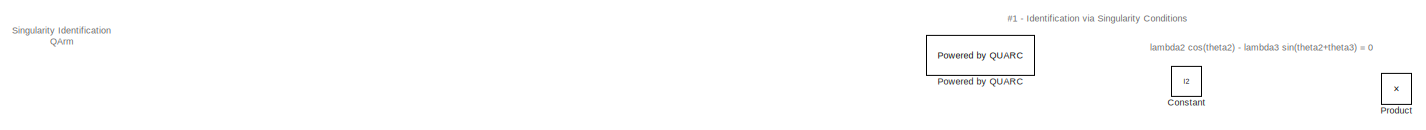
[diagram: root canvas - part 1/3, full width, top band]
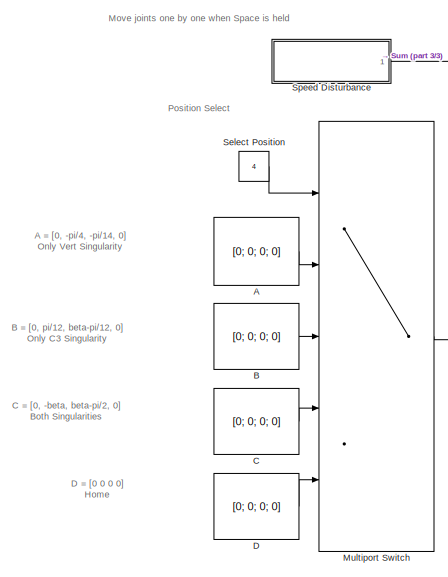
[diagram: root canvas - part 2/3, middle left region]
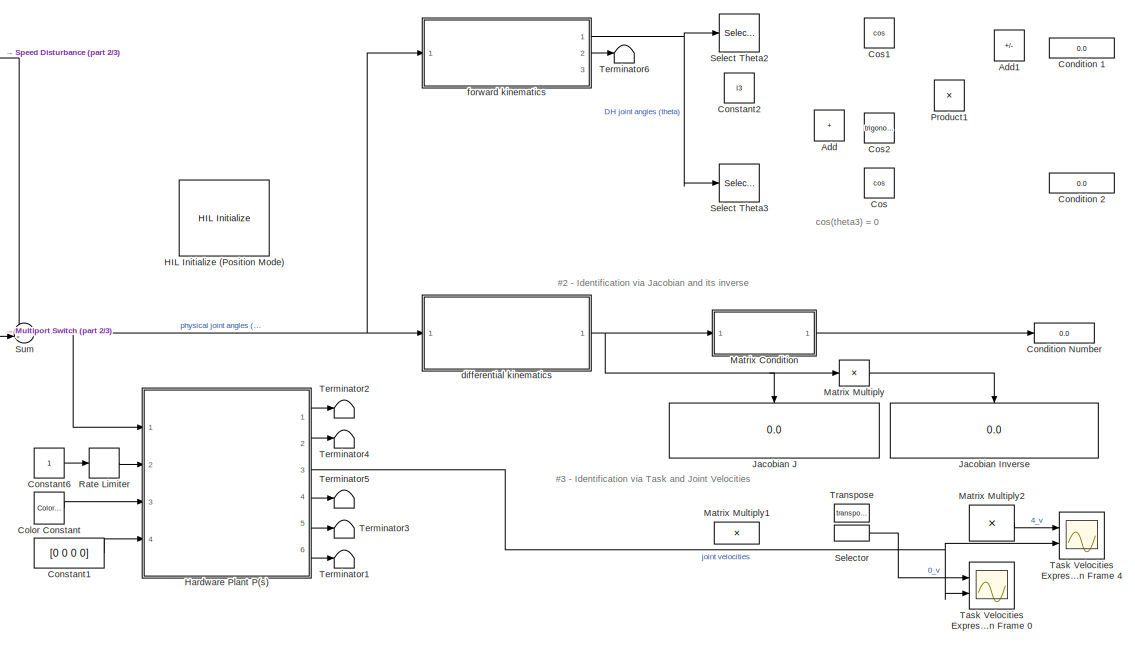
[diagram: root canvas - part 3/3, center side, full height]
MODEL slx_630bee95eee6
KIND model
CONFIG AbsTol = auto
CONFIG EnableMultiTasking = off
CONFIG FixedStep = 1/500
CONFIG InitFcn = L1 = 0.1400;\nL2 = 0.3500;\nL3 = 0.0500;\nL4 = 0.2500;\nL5 = 0.1500;\nl1 = L1;\nl2 = sqrt(L2^2 + L3^2);\nl3 = L4 + L5;\nbeta = atan(L3/L2);\n\nhome = [0.45; 0; 0.49];\ndefault = home;\ndefault_w = [0.25; 0.25; 0.1];\ndefault_a = [0; 0.375; 0.1];\nA = [ 0.25; 0.25; 0.01];\nB = [ 0.25; 0.50; 0.01];\nC = [-0.25; 0.50; 0.01];\nD = [-0.25; 0.25; 0.01];\n\nwelding_waypoints = [default_w, A, B, C, D, A]' ;\nassembly_waypoin...<+96ch>
CONFIG MaxStep = auto
CONFIG MinStep = auto
CONFIG RelTol = 1e-3
CONFIG SampleTimeConstraint = Unconstrained
CONFIG SolverName = ode4
CONFIG StartTime = 0.0
CONFIG StopTime = Inf
BLOCK [Constant] A
  Value = [0; 0; 0; 0]
  VectorParams1D = off
BLOCK [Sum] Add
  IconShape = rectangular
  Ports = [2, 1]
BLOCK [Sum] Add1
  IconShape = rectangular
  Inputs = +-
  Ports = [2, 1]
BLOCK [Constant] B
  Value = [0; 0; 0; 0]
  VectorParams1D = off
BLOCK [Constant] C
  Value = [0; 0; 0; 0]
  VectorParams1D = off
BLOCK [Reference] Color Constant  REF=quarc_library/Sources/Signals/Color Constant
  Ports = [0, 1]
  SourceBlock = quarc_library/Sources/Signals/Color Constant
  SourceProductName = QUARC Targets
  SourceType = Color Constant
BLOCK [Display] Condition 1
  Decimation = 1
  Ports = [1]
BLOCK [Display] Condition 2
  Decimation = 1
  Ports = [1]
BLOCK [Display] Condition Number
  Commented = on
  Decimation = 1
  Ports = [1]
BLOCK [Constant] Constant
  Value = l2
BLOCK [Constant] Constant1
  Value = [0 0 0 0]
BLOCK [Constant] Constant2
  Value = l3
BLOCK [Constant] Constant6
BLOCK [Trigonometry] Cos
  Operator = cos
  Ports = [1, 1]
BLOCK [Trigonometry] Cos1
  Operator = cos
  Ports = [1, 1]
BLOCK [Trigonometry] Cos2
  Ports = [1, 1]
BLOCK [Constant] D
  Value = [0; 0; 0; 0]
  VectorParams1D = off
BLOCK [Reference] HIL Initialize (Position Mode)  REF=quarc_library/Data Acquisition/Generic/Configuration/HIL Initialize
  AttributesFormatString = %<object_name> (%<board_type>-%<board_number>)
  Ports = []
  SourceBlock = quarc_library/Data Acquisition/Generic/Configuration/HIL Initialize
  SourceProductName = QUARC Targets
  SourceType = HIL Initialize
  UserDataPersistent = on
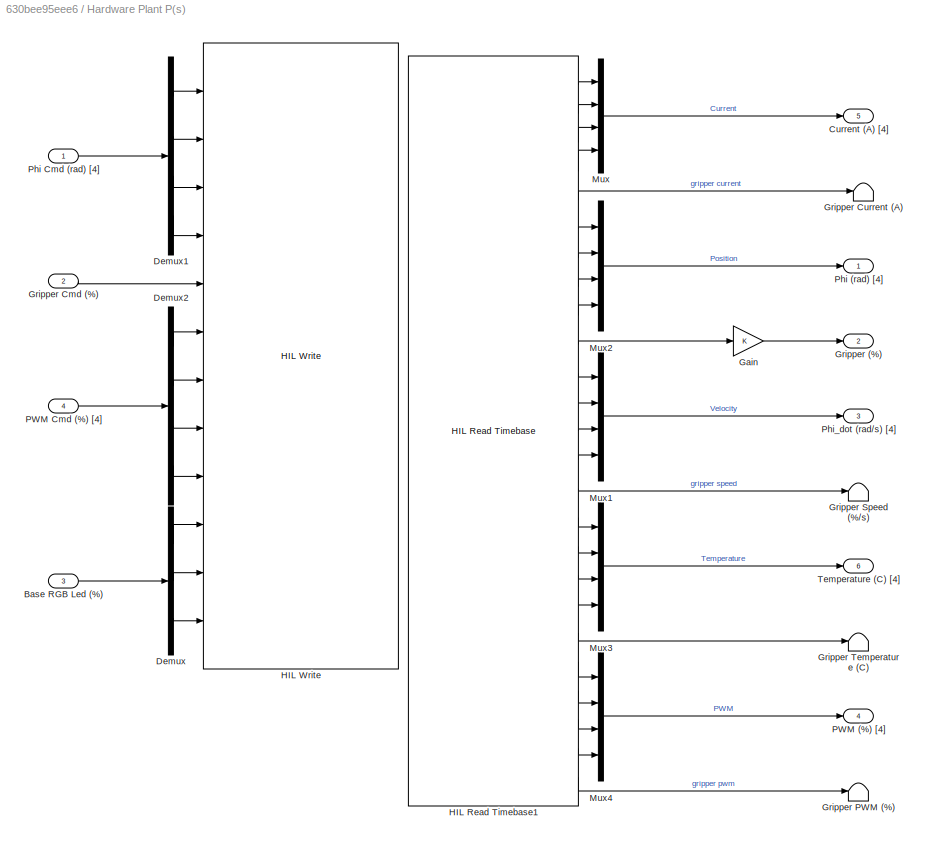
BLOCK [SubSystem] Hardware Plant P(s)
  Ports = [4, 6]
BLOCK [Inport] Hardware Plant P(s)/Base RGB Led (%)
  Port = 3
BLOCK [Outport] Hardware Plant P(s)/Current (A) [4]
  Port = 5
  VectorParamsAs1DForOutWhenUnconnected = off
BLOCK [Demux] Hardware Plant P(s)/Demux
  Outputs = 3
  Ports = [1, 3]
BLOCK [Demux] Hardware Plant P(s)/Demux1
  Ports = [1, 4]
BLOCK [Demux] Hardware Plant P(s)/Demux2
  Ports = [1, 4]
BLOCK [Gain] Hardware Plant P(s)/Gain
BLOCK [Outport] Hardware Plant P(s)/Gripper (%)
  Port = 2
  VectorParamsAs1DForOutWhenUnconnected = off
BLOCK [Inport] Hardware Plant P(s)/Gripper Cmd (%)
  Port = 2
BLOCK [Terminator] Hardware Plant P(s)/Gripper Current (A)
BLOCK [Terminator] Hardware Plant P(s)/Gripper PWM (%)
BLOCK [Terminator] Hardware Plant P(s)/Gripper Speed (%//s)
BLOCK [Terminator] Hardware Plant P(s)/Gripper Temperature (C)
BLOCK [Reference] Hardware Plant P(s)/HIL Read Timebase1  REF=quarc_library/Data Acquisition/Generic/Timebases/HIL Read
Timebase
  AttributesFormatString = (%<object_name>)
  Ports = [0, 25]
  SourceBlock = quarc_library/Data Acquisition/Generic/Timebases/HIL Read\nTimebase
  SourceProductName = QUARC Targets
  SourceType = HIL Read Timebase
  UserDataPersistent = on
BLOCK [Reference] Hardware Plant P(s)/HIL Write  REF=quarc_library/Data Acquisition/Generic/Immediate I//O/HIL Write
  AttributesFormatString = (%<object_name>)
  Ports = [12]
  SourceBlock = quarc_library/Data Acquisition/Generic/Immediate I//O/HIL Write
  SourceProductName = QUARC Targets
  SourceType = HIL Write
  UserDataPersistent = on
BLOCK [Mux] Hardware Plant P(s)/Mux
  DisplayOption = bar
  Ports = [4, 1]
BLOCK [Mux] Hardware Plant P(s)/Mux1
  DisplayOption = bar
  Ports = [4, 1]
BLOCK [Mux] Hardware Plant P(s)/Mux2
  DisplayOption = bar
  Ports = [4, 1]
BLOCK [Mux] Hardware Plant P(s)/Mux3
  DisplayOption = bar
  Ports = [4, 1]
BLOCK [Mux] Hardware Plant P(s)/Mux4
  DisplayOption = bar
  Ports = [4, 1]
BLOCK [Outport] Hardware Plant P(s)/PWM (%) [4]
  Port = 4
  VectorParamsAs1DForOutWhenUnconnected = off
BLOCK [Inport] Hardware Plant P(s)/PWM Cmd (%) [4]
  Port = 4
BLOCK [Outport] Hardware Plant P(s)/Phi (rad) [4]
  VectorParamsAs1DForOutWhenUnconnected = off
BLOCK [Inport] Hardware Plant P(s)/Phi Cmd (rad) [4]
BLOCK [Outport] Hardware Plant P(s)/Phi_dot (rad//s) [4]
  Port = 3
  VectorParamsAs1DForOutWhenUnconnected = off
BLOCK [Outport] Hardware Plant P(s)/Temperature (C) [4]
  Port = 6
  VectorParamsAs1DForOutWhenUnconnected = off
BLOCK [Display] Jacobian Inverse
  Commented = on
  Decimation = 1
  NameLocation = right
  Ports = [1]
BLOCK [Display] Jacobian J
  Commented = on
  Decimation = 1
  NameLocation = left
  Ports = [1]
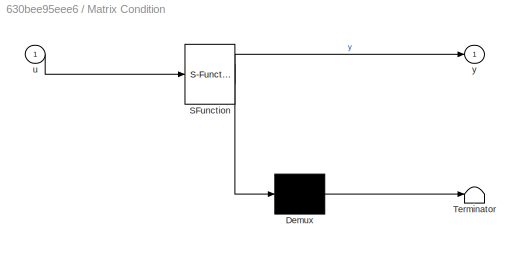
BLOCK [SubSystem] Matrix Condition
  Commented = through
  ErrorFcn = Stateflow.Translate.translate
  PermitHierarchicalResolution = ExplicitOnly
  Ports = [1, 1]
  SFBlockType = MATLAB Function
  TreatAsAtomicUnit = on
BLOCK [Demux] Matrix Condition/ Demux 
  Outputs = 1
  Ports = [1, 1]
BLOCK [S-Function] Matrix Condition/ SFunction 
  EnableBusSupport = off
  FunctionName = sf_sfun
  PortCounts = [1 2]
  Ports = [1, 2]
  SFcnIsStateOwnerBlock = off
  SFunctionDeploymentMode = off
  Tag = Stateflow S-Function 3
BLOCK [Terminator] Matrix Condition/ Terminator 
BLOCK [Inport] Matrix Condition/u
BLOCK [Outport] Matrix Condition/y
  VectorParamsAs1DForOutWhenUnconnected = off
BLOCK [Product] Matrix Multiply
  Commented = through
  Inputs = /
  Multiplication = Matrix(*)
  Ports = [1, 1]
BLOCK [Product] Matrix Multiply1
  Commented = on
  Multiplication = Matrix(*)
  Ports = [2, 1]
BLOCK [Product] Matrix Multiply2
  Commented = on
  Multiplication = Matrix(*)
  Ports = [2, 1]
BLOCK [MultiPortSwitch] Multiport Switch
  InputSameDT = off
  Inputs = 4
  Ports = [5, 1]
  SaturateOnIntegerOverflow = off
BLOCK [Reference] Powered by QUARC  REF=quarc_library/Logos/Powered by QUARC
  Ports = []
  SourceBlock = quarc_library/Logos/Powered by QUARC
  SourceProductName = QUARC Targets
  SourceType = Powered by QUARC
BLOCK [Product] Product
  Ports = [2, 1]
BLOCK [Product] Product1
  Ports = [2, 1]
BLOCK [RateLimiter] Rate Limiter
  SampleTimeMode = inherited
BLOCK [Constant] Select Position
  Value = 4
BLOCK [Selector] Select Theta2
  IndexOptions = Index vector (dialog)
  Indices = 2
  InputPortWidth = 4
  NameLocation = top
  OutputSizes = 1
  Ports = [1, 1]
BLOCK [Selector] Select Theta3
  IndexOptions = Index vector (dialog)
  Indices = 3
  InputPortWidth = 4
  OutputSizes = 1
  Ports = [1, 1]
BLOCK [Selector] Selector
  Commented = through
  IndexOptions = Index vector (dialog)
  Indices = [1:3]
  InputPortWidth = 4
  OutputSizes = 1
  Ports = [1, 1]
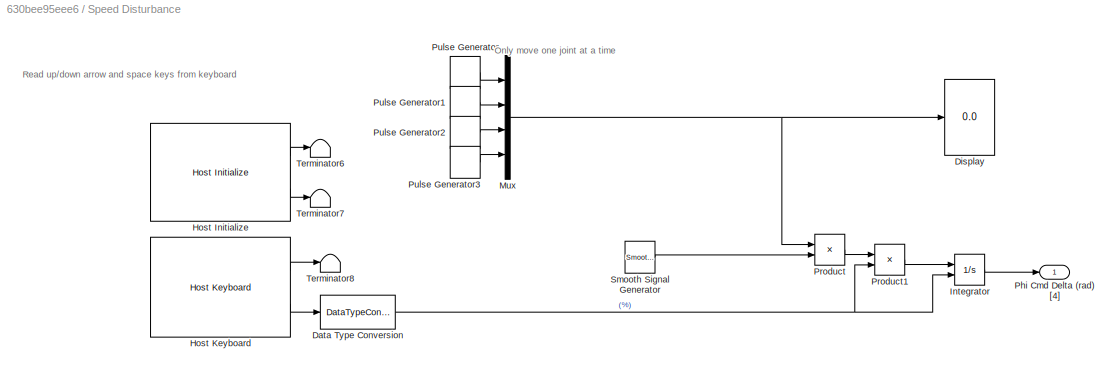
BLOCK [SubSystem] Speed Disturbance
  Ports = [0, 1]
BLOCK [DataTypeConversion] Speed Disturbance/Data Type Conversion
  OutDataTypeStr = double
  RndMeth = Floor
  SaturateOnIntegerOverflow = off
BLOCK [Display] Speed Disturbance/Display
  Decimation = 1
  Ports = [1]
BLOCK [Reference] Speed Disturbance/Host Initialize  REF=quarc_library/Devices/Peripherals/Host/Host Initialize
  Ports = [0, 2]
  SourceBlock = quarc_library/Devices/Peripherals/Host/Host Initialize
  SourceProductName = QUARC Targets
  SourceType = Host Initialize
BLOCK [Reference] Speed Disturbance/Host Keyboard  REF=quarc_library/Devices/Peripherals/Host/Host Keyboard
  Ports = [0, 2]
  SourceBlock = quarc_library/Devices/Peripherals/Host/Host Keyboard
  SourceProductName = QUARC Targets
  SourceType = Host Keyboard
BLOCK [Integrator] Speed Disturbance/Integrator
  ExternalReset = either
  InitialCondition = [0 0 0 0]
  Ports = [2, 1]
BLOCK [Mux] Speed Disturbance/Mux
  DisplayOption = bar
  Ports = [4, 1]
BLOCK [Outport] Speed Disturbance/Phi Cmd Delta (rad) [4]
  VectorParamsAs1DForOutWhenUnconnected = off
BLOCK [Product] Speed Disturbance/Product
  Ports = [2, 1]
BLOCK [Product] Speed Disturbance/Product1
  Ports = [2, 1]
BLOCK [DiscretePulseGenerator] Speed Disturbance/Pulse Generator
  Period = 8
  Ports = [0, 1]
  PulseType = Time based
  PulseWidth = 25
BLOCK [DiscretePulseGenerator] Speed Disturbance/Pulse Generator1
  Period = 8
  PhaseDelay = 2
  Ports = [0, 1]
  PulseType = Time based
  PulseWidth = 25
BLOCK [DiscretePulseGenerator] Speed Disturbance/Pulse Generator2
  Period = 8
  PhaseDelay = 4
  Ports = [0, 1]
  PulseType = Time based
  PulseWidth = 25
BLOCK [DiscretePulseGenerator] Speed Disturbance/Pulse Generator3
  Period = 8
  PhaseDelay = 6
  Ports = [0, 1]
  PulseType = Time based
  PulseWidth = 25
BLOCK [Reference] Speed Disturbance/Smooth Signal Generator  REF=quarc_library/Sources/Signals/Smooth Signal
Generator
  Ports = [0, 1]
  SourceBlock = quarc_library/Sources/Signals/Smooth Signal\nGenerator
  SourceProductName = QUARC Targets
  SourceType = Smooth Signal Generator
BLOCK [Terminator] Speed Disturbance/Terminator6
BLOCK [Terminator] Speed Disturbance/Terminator7
BLOCK [Terminator] Speed Disturbance/Terminator8
BLOCK [Sum] Sum
  Inputs = ++|
  Ports = [2, 1]
BLOCK [Scope] Task Velocities Expressed in Frame 0
  Commented = on
  Floating = off
  NumInputPorts = 2
  Ports = [2]
  ScopeSpecificationString = Simulink.scopes.TimeScopeBlockCfg('CurrentConfiguration', extmgr.ConfigurationSet(extmgr.Configuration('Core','General UI',true),extmgr.Configuration('Core','Source UI',true),extmgr.Configuration('Sources','WiredSimulink',true),extmgr.Configuration('Visuals','Time Domain',true,'SerializedDisplays',{struct('MinYLimReal','-0.0659','MaxYLimReal','0.06578','YLabelReal','','MinYLimMag','0.00000','MaxYL...<+2104ch>
BLOCK [Scope] Task Velocities Expressed in Frame 4
  Commented = on
  Floating = off
  NumInputPorts = 2
  Ports = [2]
  ScopeSpecificationString = Simulink.scopes.TimeScopeBlockCfg('CurrentConfiguration', extmgr.ConfigurationSet(extmgr.Configuration('Core','General UI',true),extmgr.Configuration('Core','Source UI',true),extmgr.Configuration('Sources','WiredSimulink',true,'DataLoggingVariableName','ScopeData1'),extmgr.Configuration('Visuals','Time Domain',true,'SerializedDisplays',{struct('MinYLimReal','-0.0659','MaxYLimReal','0.06578','YLabe...<+2182ch>
BLOCK [Terminator] Terminator1
BLOCK [Terminator] Terminator2
BLOCK [Terminator] Terminator3
BLOCK [Terminator] Terminator4
BLOCK [Terminator] Terminator5
BLOCK [Terminator] Terminator6
BLOCK [Math] Transpose
  Commented = through
  Operator = transpose
  Ports = [1, 1]
  SignedPower = on
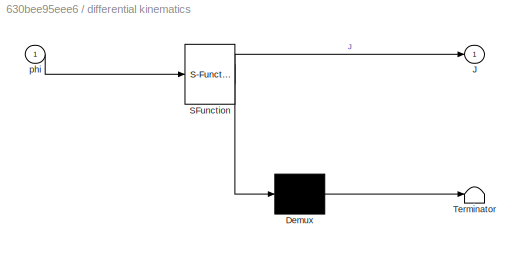
BLOCK [SubSystem] differential kinematics
  ErrorFcn = Stateflow.Translate.translate
  NameLocation = top
  PermitHierarchicalResolution = ExplicitOnly
  Ports = [1, 1]
  SFBlockType = MATLAB Function
  TreatAsAtomicUnit = on
BLOCK [Demux] differential kinematics/ Demux 
  Outputs = 1
  Ports = [1, 1]
BLOCK [S-Function] differential kinematics/ SFunction 
  EnableBusSupport = off
  FunctionName = sf_sfun
  PortCounts = [1 2]
  Ports = [1, 2]
  SFcnIsStateOwnerBlock = off
  SFunctionDeploymentMode = off
  Tag = Stateflow S-Function 1
BLOCK [Terminator] differential kinematics/ Terminator 
BLOCK [Outport] differential kinematics/J
  VectorParamsAs1DForOutWhenUnconnected = off
BLOCK [Inport] differential kinematics/phi
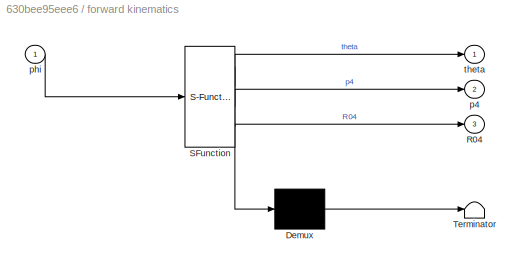
BLOCK [SubSystem] forward kinematics
  ErrorFcn = Stateflow.Translate.translate
  NameLocation = top
  PermitHierarchicalResolution = ExplicitOnly
  Ports = [1, 3]
  SFBlockType = MATLAB Function
  TreatAsAtomicUnit = on
BLOCK [Demux] forward kinematics/ Demux 
  Outputs = 1
  Ports = [1, 1]
BLOCK [S-Function] forward kinematics/ SFunction 
  EnableBusSupport = off
  FunctionName = sf_sfun
  PortCounts = [1 4]
  Ports = [1, 4]
  SFcnIsStateOwnerBlock = off
  SFunctionDeploymentMode = off
  Tag = Stateflow S-Function 2
BLOCK [Terminator] forward kinematics/ Terminator 
BLOCK [Outport] forward kinematics/R04
  Port = 3
  VectorParamsAs1DForOutWhenUnconnected = off
BLOCK [Outport] forward kinematics/p4
  Port = 2
  VectorParamsAs1DForOutWhenUnconnected = off
BLOCK [Inport] forward kinematics/phi
BLOCK [Outport] forward kinematics/theta
  VectorParamsAs1DForOutWhenUnconnected = off
ANNOTATION (root): #1 - Identification via Singularity Conditions
ANNOTATION (root): #2 - Identification via Jacobian and its inverse
ANNOTATION (root): #3 - Identification via Task and Joint Velocities
ANNOTATION (root): A = [0, -pi/4, -pi/14, 0] Only Vert Singularity
ANNOTATION (root): B = [0, pi/12, beta-pi/12, 0] Only C3 Singularity
ANNOTATION (root): C = [0, -beta, beta-pi/2, 0] Both Singularities
ANNOTATION (root): Singularity Identification QArm
ANNOTATION (root): D = [0 0 0 0] Home
ANNOTATION (root): Move joints one by one when Space is held
ANNOTATION (root): Position Select
ANNOTATION (root): cos(theta3) = 0
ANNOTATION (root): lambda2 cos(theta2) - lambda3 sin(theta2+theta3) = 0
ANNOTATION Speed Disturbance: Only move one joint at a time
ANNOTATION Speed Disturbance: Read up/down arrow and space keys from keyboard
LINE A:1 -> Multiport Switch:2
LINE B:1 -> Multiport Switch:3
LINE C:1 -> Multiport Switch:4
LINE Color Constant:1 -> Hardware Plant P(s):3
LINE Constant1:1 -> Hardware Plant P(s):4
LINE Constant6:1 -> Rate Limiter:1
LINE D:1 -> Multiport Switch:5
LINE Hardware Plant P(s)/Base RGB Led (%):1 -> Hardware Plant P(s)/Demux:1
LINE Hardware Plant P(s)/Demux1:1 -> Hardware Plant P(s)/HIL Write:1
LINE Hardware Plant P(s)/Demux1:2 -> Hardware Plant P(s)/HIL Write:2
LINE Hardware Plant P(s)/Demux1:3 -> Hardware Plant P(s)/HIL Write:3
LINE Hardware Plant P(s)/Demux1:4 -> Hardware Plant P(s)/HIL Write:4
LINE Hardware Plant P(s)/Demux2:1 -> Hardware Plant P(s)/HIL Write:6
LINE Hardware Plant P(s)/Demux2:2 -> Hardware Plant P(s)/HIL Write:7
LINE Hardware Plant P(s)/Demux2:3 -> Hardware Plant P(s)/HIL Write:8
LINE Hardware Plant P(s)/Demux2:4 -> Hardware Plant P(s)/HIL Write:9
LINE Hardware Plant P(s)/Demux:1 -> Hardware Plant P(s)/HIL Write:10
LINE Hardware Plant P(s)/Demux:2 -> Hardware Plant P(s)/HIL Write:11
LINE Hardware Plant P(s)/Demux:3 -> Hardware Plant P(s)/HIL Write:12
LINE Hardware Plant P(s)/Gain:1 -> Hardware Plant P(s)/Gripper (%):1
LINE Hardware Plant P(s)/Gripper Cmd (%):1 -> Hardware Plant P(s)/HIL Write:5
LINE Hardware Plant P(s)/HIL Read Timebase1:1 -> Hardware Plant P(s)/Mux:1
LINE Hardware Plant P(s)/HIL Read Timebase1:10 -> Hardware Plant P(s)/Gain:1
LINE Hardware Plant P(s)/HIL Read Timebase1:11 -> Hardware Plant P(s)/Mux1:1
LINE Hardware Plant P(s)/HIL Read Timebase1:12 -> Hardware Plant P(s)/Mux1:2
LINE Hardware Plant P(s)/HIL Read Timebase1:13 -> Hardware Plant P(s)/Mux1:3
LINE Hardware Plant P(s)/HIL Read Timebase1:14 -> Hardware Plant P(s)/Mux1:4
LINE Hardware Plant P(s)/HIL Read Timebase1:15 -> Hardware Plant P(s)/Gripper Speed (%//s):1
LINE Hardware Plant P(s)/HIL Read Timebase1:16 -> Hardware Plant P(s)/Mux3:1
LINE Hardware Plant P(s)/HIL Read Timebase1:17 -> Hardware Plant P(s)/Mux3:2
LINE Hardware Plant P(s)/HIL Read Timebase1:18 -> Hardware Plant P(s)/Mux3:3
LINE Hardware Plant P(s)/HIL Read Timebase1:19 -> Hardware Plant P(s)/Mux3:4
LINE Hardware Plant P(s)/HIL Read Timebase1:2 -> Hardware Plant P(s)/Mux:2
LINE Hardware Plant P(s)/HIL Read Timebase1:20 -> Hardware Plant P(s)/Gripper Temperature (C):1
LINE Hardware Plant P(s)/HIL Read Timebase1:21 -> Hardware Plant P(s)/Mux4:1
LINE Hardware Plant P(s)/HIL Read Timebase1:22 -> Hardware Plant P(s)/Mux4:2
LINE Hardware Plant P(s)/HIL Read Timebase1:23 -> Hardware Plant P(s)/Mux4:3
LINE Hardware Plant P(s)/HIL Read Timebase1:24 -> Hardware Plant P(s)/Mux4:4
LINE Hardware Plant P(s)/HIL Read Timebase1:25 -> Hardware Plant P(s)/Gripper PWM (%):1
LINE Hardware Plant P(s)/HIL Read Timebase1:3 -> Hardware Plant P(s)/Mux:3
LINE Hardware Plant P(s)/HIL Read Timebase1:4 -> Hardware Plant P(s)/Mux:4
LINE Hardware Plant P(s)/HIL Read Timebase1:5 -> Hardware Plant P(s)/Gripper Current (A):1
LINE Hardware Plant P(s)/HIL Read Timebase1:6 -> Hardware Plant P(s)/Mux2:1
LINE Hardware Plant P(s)/HIL Read Timebase1:7 -> Hardware Plant P(s)/Mux2:2
LINE Hardware Plant P(s)/HIL Read Timebase1:8 -> Hardware Plant P(s)/Mux2:3
LINE Hardware Plant P(s)/HIL Read Timebase1:9 -> Hardware Plant P(s)/Mux2:4
LINE Hardware Plant P(s)/Mux1:1 -> Hardware Plant P(s)/Phi_dot (rad//s) [4]:1
LINE Hardware Plant P(s)/Mux2:1 -> Hardware Plant P(s)/Phi (rad) [4]:1
LINE Hardware Plant P(s)/Mux3:1 -> Hardware Plant P(s)/Temperature (C) [4]:1
LINE Hardware Plant P(s)/Mux4:1 -> Hardware Plant P(s)/PWM (%) [4]:1
LINE Hardware Plant P(s)/Mux:1 -> Hardware Plant P(s)/Current (A) [4]:1
LINE Hardware Plant P(s)/PWM Cmd (%) [4]:1 -> Hardware Plant P(s)/Demux2:1
LINE Hardware Plant P(s)/Phi Cmd (rad) [4]:1 -> Hardware Plant P(s)/Demux1:1
LINE Hardware Plant P(s):1 -> Terminator2:1
LINE Hardware Plant P(s):2 -> Terminator4:1
NET Hardware Plant P(s):3 -> Task Velocities Expressed in Frame 0:2, Task Velocities Expressed in Frame 4:2
LINE Hardware Plant P(s):4 -> Terminator5:1
LINE Hardware Plant P(s):5 -> Terminator3:1
LINE Hardware Plant P(s):6 -> Terminator1:1
LINE Matrix Condition:1 -> Condition Number:1
LINE Matrix Multiply2:1 -> Task Velocities Expressed in Frame 4:1
LINE Matrix Multiply:1 -> Jacobian Inverse:1
LINE Multiport Switch:1 -> Sum:2
LINE Rate Limiter:1 -> Hardware Plant P(s):2
LINE Select Position:1 -> Multiport Switch:1
LINE Selector:1 -> Task Velocities Expressed in Frame 0:1
NET Speed Disturbance/Data Type Conversion:1 -> Speed Disturbance/Integrator:2, Speed Disturbance/Product1:2
LINE Speed Disturbance/Host Initialize:1 -> Speed Disturbance/Terminator6:1
LINE Speed Disturbance/Host Initialize:2 -> Speed Disturbance/Terminator7:1
LINE Speed Disturbance/Host Keyboard:1 -> Speed Disturbance/Terminator8:1
LINE Speed Disturbance/Host Keyboard:2 -> Speed Disturbance/Data Type Conversion:1
LINE Speed Disturbance/Integrator:1 -> Speed Disturbance/Phi Cmd Delta (rad) [4]:1
NET Speed Disturbance/Mux:1 -> Speed Disturbance/Display:1, Speed Disturbance/Product:1
LINE Speed Disturbance/Product1:1 -> Speed Disturbance/Integrator:1
LINE Speed Disturbance/Product:1 -> Speed Disturbance/Product1:1
LINE Speed Disturbance/Pulse Generator1:1 -> Speed Disturbance/Mux:2
LINE Speed Disturbance/Pulse Generator2:1 -> Speed Disturbance/Mux:3
LINE Speed Disturbance/Pulse Generator3:1 -> Speed Disturbance/Mux:4
LINE Speed Disturbance/Pulse Generator:1 -> Speed Disturbance/Mux:1
LINE Speed Disturbance/Smooth Signal Generator:1 -> Speed Disturbance/Product:2
LINE Speed Disturbance:1 -> Sum:1
NET Sum:1 -> Hardware Plant P(s):1, differential kinematics:1, forward kinematics:1
NET differential kinematics:1 -> Jacobian J:1, Matrix Condition:1, Matrix Multiply:1
NET forward kinematics:1 -> Select Theta2:1, Select Theta3:1
LINE forward kinematics:2 -> Terminator6:1
note: NET lines group one-source signal fan-out (src -> all destinations, sorted); 1:1 wires keep LINE
CHART differential kinematics states=1 transitions=1
  STATE_LABEL 'eML_blk_kernel()'
  STATE_LABEL 'SCRIPT:\nfunction J   = qarmDifferentialKinematics(phi)\n\n%% QUANSER_ARM_FDK\n% v 1.0 - 13th August 2020\n\n% REFERENCE: \n% Chapter 5. Velocity Kinematics\n% Robot Dynamics and Control \n% Spong, Vidyasagar\n% 1989\n\n% INPUTS:\n% phi     : Alternate joint angles vector 4 x 1\n\n% OUTPUTS:\n% p4      : End-effector frame {4} position vector expressed in base frame {0}\n% R04     : rotation matrix from end-effect...<+590ch>'
CHART forward kinematics states=1 transitions=1
  STATE_LABEL 'eML_blk_kernel()'
  STATE_LABEL 'SCRIPT:\nfunction [theta, p4, R04] = qarmForwardKinematics(phi)\n\n%% QUANSER_ARM_FPK\n% v 4.0 - 4th June 2020\n\n% REFERENCE: \n% Chapter 3. Forward Kinematics\n% Robot Dynamics and Control \n% Spong, Vidyasagar\n% 1989\n\n% INPUTS:\n% phi     : Alternate joint angles vector 4 x 1\n\n% OUTPUTS:\n% p4      : End-effector frame {4} position vector expressed in base frame {0}\n% R04     : rotation matrix from end-ef...<+1876ch>'
CHART Matrix Condition states=1 transitions=1
  STATE_LABEL 'eML_blk_kernel()'
  STATE_LABEL 'SCRIPT:\n% Determine the condition number of a matrix\n\nfunction y = condNumber(u)\ny = cond(u);'
CHART  states=0 transitions=0
CHART  states=0 transitions=0
CHART  states=0 transitions=0
